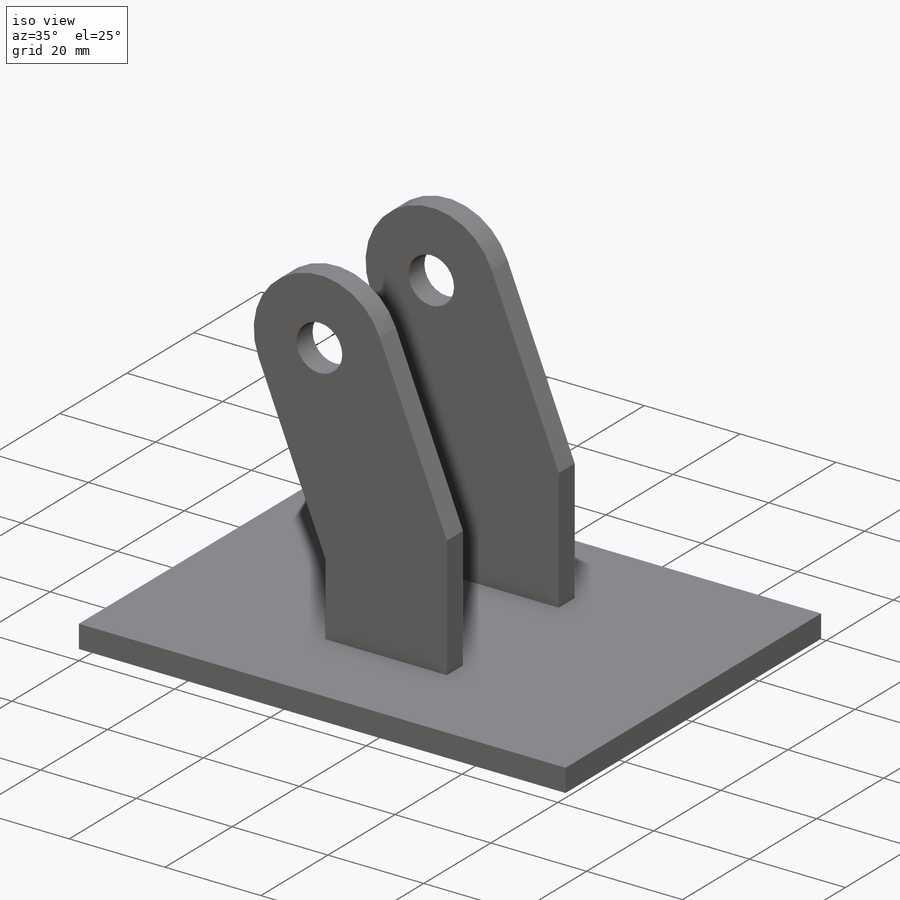
[diagram: iso view]
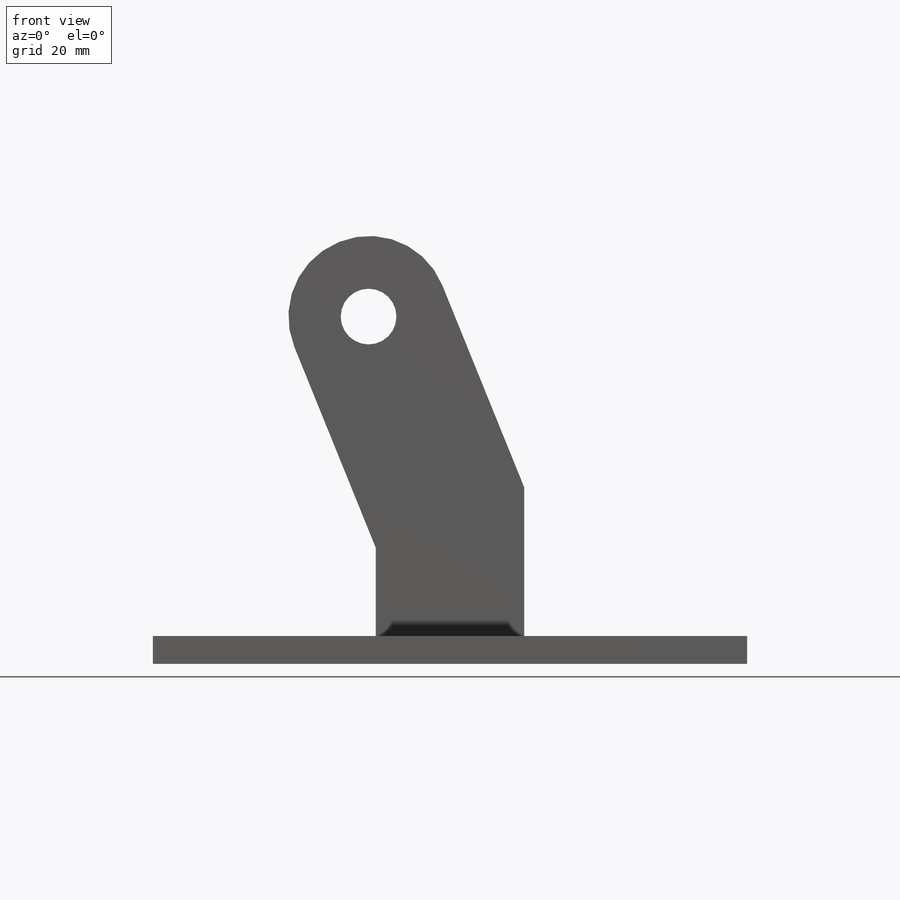
[diagram: front view]
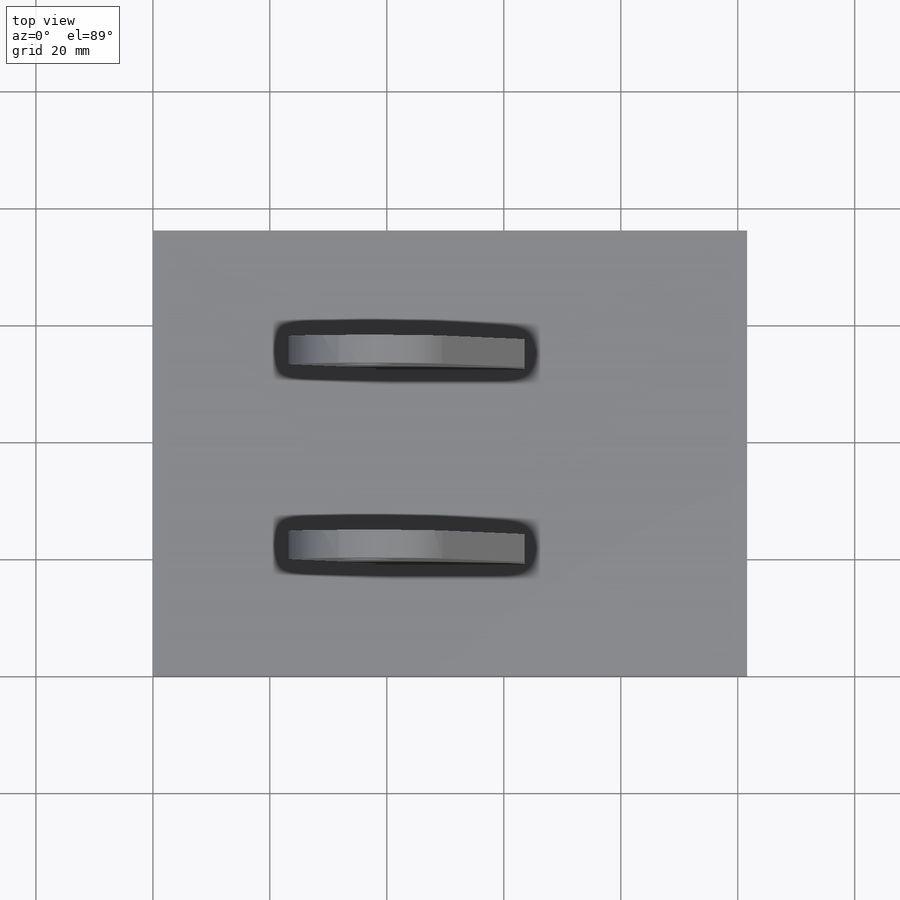
[diagram: top view]
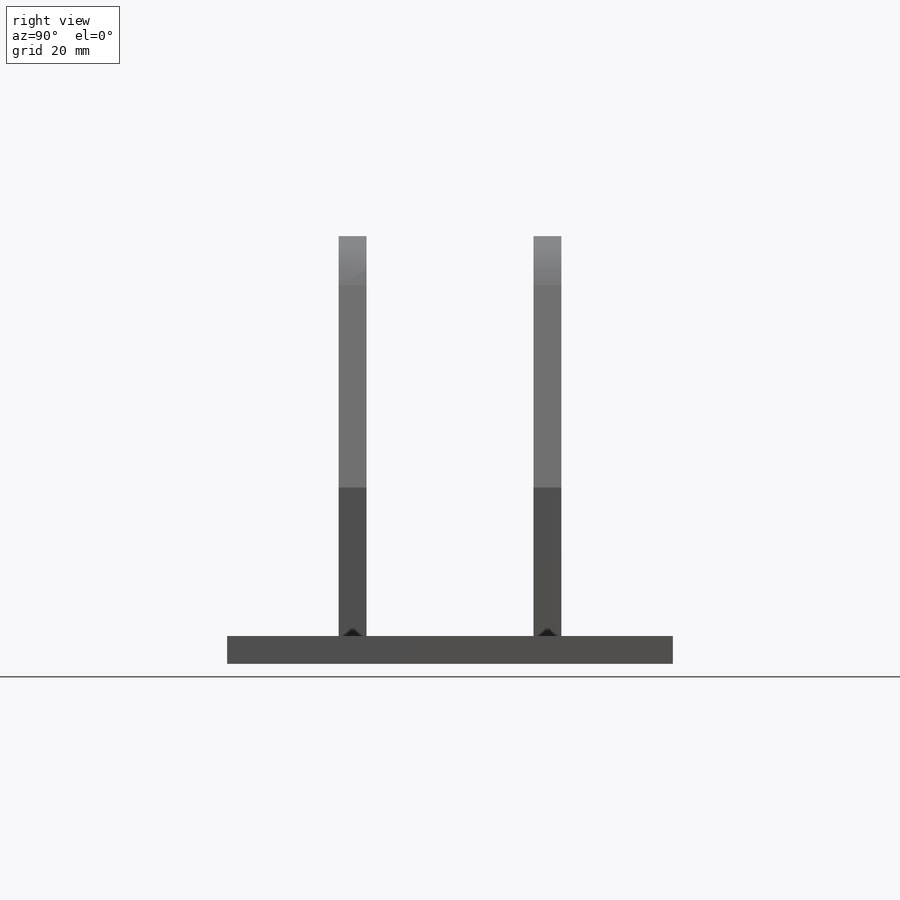
[diagram: right view]
SOLIDWORKS PART (.sldprt)
format: sldprt  version: not decoded by parser v0  size: 206,336 bytes
history: native  units: mm
features: sketch x5, fillet x4, extrude x3, cut_extrude x2, material x1 (+12 scaffold rows collapsed)
feature tree (27):
  scaffold x12  (default folders/planes/origin — collapsed)
  material  "Material <not specified>"
  sketch  "Sketch1"  dims[D1=76.2mm D2=101.6mm]
  extrude  "Boss-Extrude1"  Depth=4.7625mm
  sketch  "Sketch2"  dims[D1=38.1mm D2=38.1mm D3=4.7625mm D4=19.05mm D5=38.1mm D6=38.1mm D7=4.7625mm D8=19.05mm]
  extrude  "Boss-Extrude2"  Depth=25.4mm
  sketch  "Sketch3"
  cut_extrude  "Cut-Extrude1"  [1 undecoded]
  sketch  "Sketch4"
  extrude  "Boss-Extrude3"  Depth=50.8mm
  fillet  "Fillet6"  Radius=13.716mm
  fillet  "Fillet8"  Radius=13.462mm
  fillet  "Fillet9"  Radius=13.462mm
  fillet  "Fillet10"  Radius=13.716mm
  sketch  "Sketch6"  dims[D1=9.525mm]
  cut_extrude  "Cut-Extrude2"  [1 undecoded]
decode coverage: 10 of 14 modeling features carry decoded parameters
note: 2 parameter values undecoded
note: suppression state not decoded; provenance and decode notes live in map.json
